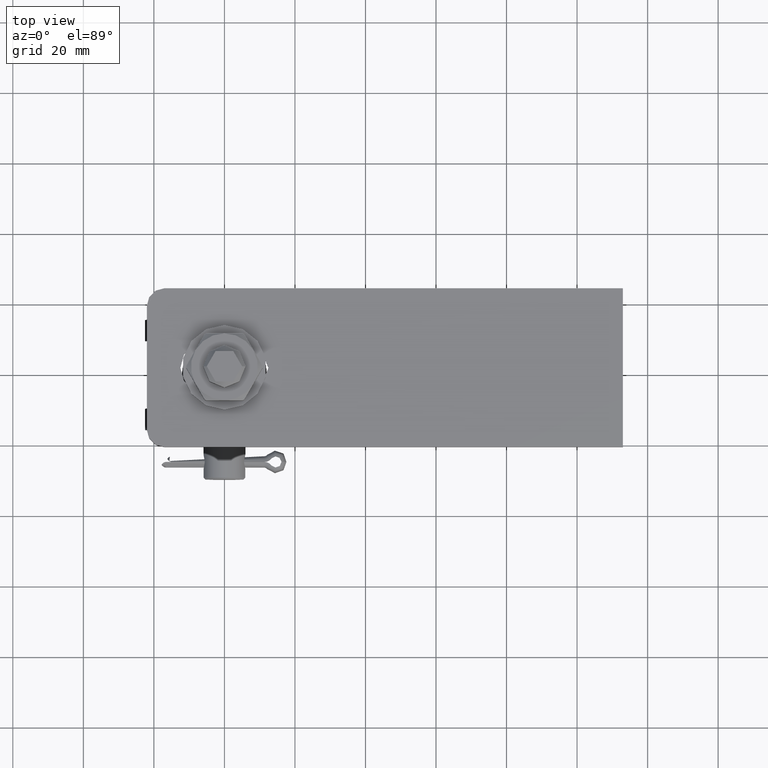
[diagram: clean part render]
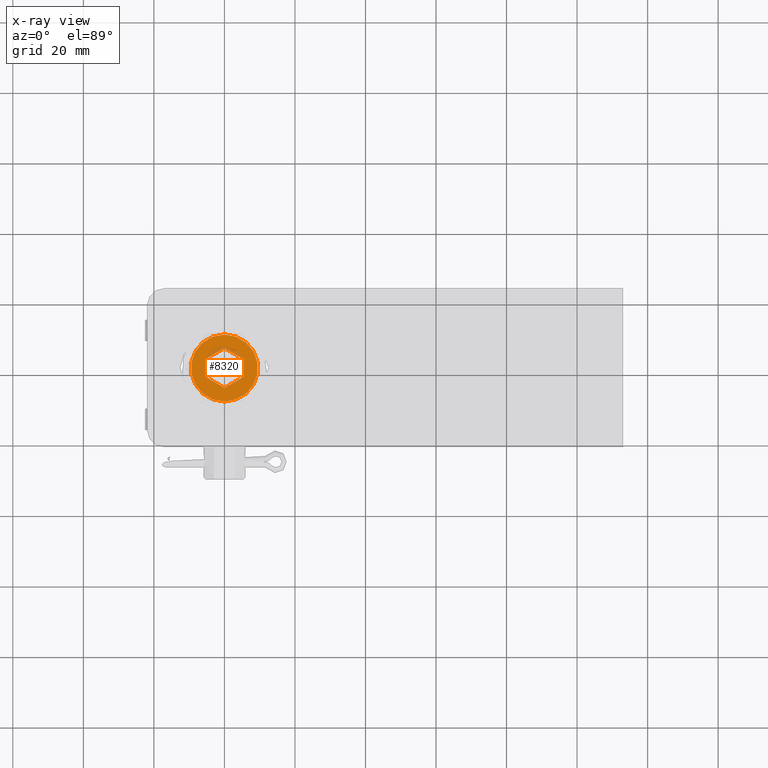
[diagram: x-ray — body ghosted, one internal face saturated and labeled with its STEP entity id]
A machine part, top view, then the same camera in x-ray: the body is ghosted and one INTERNAL B-rep face — a face not visible from any outside direction — is saturated and labeled: STEP entity #8320.
In plain terms, the highlighted planar face has unit normal (-0, 0, -1).
Its self-contained STEP definition (entity closure, byte-faithful):
#100 = CARTESIAN_POINT ( 'NONE',  ( -8.227241335952166779, -5.000000000000004441, 4.750000000000000000 ) ) ;
#216 = DIRECTION ( 'NONE',  ( -5.332501632730976308E-58, 0.000000000000000000, 1.000000000000000000 ) ) ;
#279 = CARTESIAN_POINT ( 'NONE',  ( 0.000000000000000000, -5.000000000000004441, 0.000000000000000000 ) ) ;
#420 = CARTESIAN_POINT ( 'NONE',  ( 0.000000000000000000, -5.000000000000004441, 0.000000000000000000 ) ) ;
#661 = DIRECTION ( 'NONE',  ( 8.881784197001252323E-16, 0.000000000000000000, 1.000000000000000000 ) ) ;
#663 = EDGE_CURVE ( 'NONE', #11355, #12921, #3059, .T. ) ;
#765 = VERTEX_POINT ( 'NONE', #14990 ) ;
#793 = EDGE_CURVE ( 'NONE', #765, #16151, #13659, .T. ) ;
#934 = DIRECTION ( 'NONE',  ( -5.332501632730977015E-58, 0.000000000000000000, 1.000000000000000000 ) ) ;
#1010 = DIRECTION ( 'NONE',  ( -5.332501632730976308E-58, 0.000000000000000000, 1.000000000000000000 ) ) ;
#1414 = AXIS2_PLACEMENT_3D ( 'NONE', #9648, #2019, #661 ) ;
#1593 = DIRECTION ( 'NONE',  ( -0.000000000000000000, -1.000000000000000000, -0.000000000000000000 ) ) ;
#1826 = ORIENTED_EDGE ( 'NONE', *, *, #12090, .T. ) ;
#2019 = DIRECTION ( 'NONE',  ( -0.000000000000000000, -1.000000000000000000, -0.000000000000000000 ) ) ;
#2489 = CARTESIAN_POINT ( 'NONE',  ( 0.000000000000000000, -5.000000000000004441, 0.000000000000000000 ) ) ;
#2492 = ORIENTED_EDGE ( 'NONE', *, *, #7893, .T. ) ;
#2567 = AXIS2_PLACEMENT_3D ( 'NONE', #4148, #5487, #216 ) ;
#2681 = DIRECTION ( 'NONE',  ( -8.881784197001252323E-16, 0.000000000000000000, 1.000000000000000000 ) ) ;
#2754 = PLANE ( 'NONE',  #2567 ) ;
#3052 = CARTESIAN_POINT ( 'NONE',  ( 0.000000000000000000, -5.000000000000004441, 0.000000000000000000 ) ) ;
#3059 = CIRCLE ( 'NONE', #7001, 9.499999999999998224 ) ;
#3911 = CIRCLE ( 'NONE', #12816, 9.499999999999998224 ) ;
#4148 = CARTESIAN_POINT ( 'NONE',  ( 0.000000000000000000, -5.000000000000004441, 0.000000000000000000 ) ) ;
#4269 = EDGE_CURVE ( 'NONE', #15916, #17182, #15122, .T. ) ;
#4470 = ORIENTED_EDGE ( 'NONE', *, *, #6750, .T. ) ;
#4530 = AXIS2_PLACEMENT_3D ( 'NONE', #279, #1593, #2681 ) ;
#4988 = DIRECTION ( 'NONE',  ( -5.332501632730977015E-58, 0.000000000000000000, 1.000000000000000000 ) ) ;
#5111 = FACE_BOUND ( 'NONE', #12027, .T. ) ;
#5123 = VERTEX_POINT ( 'NONE', #9698 ) ;
#5487 = DIRECTION ( 'NONE',  ( 0.000000000000000000, 1.000000000000000000, 0.000000000000000000 ) ) ;
#5516 = FACE_OUTER_BOUND ( 'NONE', #11053, .T. ) ;
#5571 = DIRECTION ( 'NONE',  ( -5.332501632730976308E-58, 0.000000000000000000, 1.000000000000000000 ) ) ;
#5579 = ORIENTED_EDGE ( 'NONE', *, *, #9353, .T. ) ;
#6349 = CARTESIAN_POINT ( 'NONE',  ( 0.000000000000000000, -5.000000000000004441, 0.000000000000000000 ) ) ;
#6732 = CIRCLE ( 'NONE', #15186, 5.600000000000000533 ) ;
#6750 = EDGE_CURVE ( 'NONE', #10880, #11355, #3911, .T. ) ;
#7001 = AXIS2_PLACEMENT_3D ( 'NONE', #420, #15048, #5571 ) ;
#7893 = EDGE_CURVE ( 'NONE', #12921, #5123, #11391, .T. ) ;
#8320 = ADVANCED_FACE ( 'NONE', ( #5111, #5516 ), #2754, .F. ) ;
#8552 = CIRCLE ( 'NONE', #11478, 9.499999999999998224 ) ;
#8855 = ORIENTED_EDGE ( 'NONE', *, *, #12431, .T. ) ;
#8886 = CARTESIAN_POINT ( 'NONE',  ( 0.000000000000000000, -5.000000000000004441, 0.000000000000000000 ) ) ;
#9068 = DIRECTION ( 'NONE',  ( 1.776356839400250465E-15, 0.000000000000000000, 1.000000000000000000 ) ) ;
#9353 = EDGE_CURVE ( 'NONE', #17182, #15916, #6732, .T. ) ;
#9362 = CIRCLE ( 'NONE', #4530, 9.499999999999998224 ) ;
#9373 = AXIS2_PLACEMENT_3D ( 'NONE', #2489, #17042, #9068 ) ;
#9648 = CARTESIAN_POINT ( 'NONE',  ( 0.000000000000000000, -5.000000000000004441, 0.000000000000000000 ) ) ;
#9698 = CARTESIAN_POINT ( 'NONE',  ( -1.502314598737151143E-15, -5.000000000000004441, -9.499999999999998224 ) ) ;
#10211 = CARTESIAN_POINT ( 'NONE',  ( -8.227241335952166779, -5.000000000000004441, -4.749999999999999112 ) ) ;
#10393 = DIRECTION ( 'NONE',  ( 0.000000000000000000, 1.000000000000000000, 0.000000000000000000 ) ) ;
#10688 = CARTESIAN_POINT ( 'NONE',  ( 2.986200914329347412E-57, -5.000000000000004441, -5.600000000000000533 ) ) ;
#10755 = ORIENTED_EDGE ( 'NONE', *, *, #663, .T. ) ;
#10880 = VERTEX_POINT ( 'NONE', #13819 ) ;
#11052 = CARTESIAN_POINT ( 'NONE',  ( 6.858022075225178552E-16, -5.000000000000004441, 5.600000000000000533 ) ) ;
#11053 = EDGE_LOOP ( 'NONE', ( #8855, #4470, #10755, #2492, #1826, #17173 ) ) ;
#11355 = VERTEX_POINT ( 'NONE', #100 ) ;
#11391 = CIRCLE ( 'NONE', #9373, 9.499999999999998224 ) ;
#11392 = DIRECTION ( 'NONE',  ( 0.000000000000000000, 1.000000000000000000, 0.000000000000000000 ) ) ;
#11478 = AXIS2_PLACEMENT_3D ( 'NONE', #3052, #15016, #13753 ) ;
#12027 = EDGE_LOOP ( 'NONE', ( #15602, #5579 ) ) ;
#12090 = EDGE_CURVE ( 'NONE', #5123, #765, #8552, .T. ) ;
#12431 = EDGE_CURVE ( 'NONE', #16151, #10880, #9362, .T. ) ;
#12745 = CARTESIAN_POINT ( 'NONE',  ( 0.000000000000000000, -5.000000000000004441, 0.000000000000000000 ) ) ;
#12816 = AXIS2_PLACEMENT_3D ( 'NONE', #8886, #14291, #1010 ) ;
#12921 = VERTEX_POINT ( 'NONE', #10211 ) ;
#13659 = CIRCLE ( 'NONE', #1414, 9.499999999999998224 ) ;
#13753 = DIRECTION ( 'NONE',  ( 5.332501632730976308E-58, 0.000000000000000000, -1.000000000000000000 ) ) ;
#13819 = CARTESIAN_POINT ( 'NONE',  ( 0.000000000000000000, -5.000000000000004441, 9.499999999999998224 ) ) ;
#14291 = DIRECTION ( 'NONE',  ( -0.000000000000000000, -1.000000000000000000, -0.000000000000000000 ) ) ;
#14338 = CARTESIAN_POINT ( 'NONE',  ( 8.227241335952165002, -5.000000000000004441, 4.749999999999996447 ) ) ;
#14477 = AXIS2_PLACEMENT_3D ( 'NONE', #12745, #11392, #934 ) ;
#14990 = CARTESIAN_POINT ( 'NONE',  ( 8.227241335952163226, -5.000000000000004441, -4.750000000000001776 ) ) ;
#15016 = DIRECTION ( 'NONE',  ( 0.000000000000000000, -1.000000000000000000, 0.000000000000000000 ) ) ;
#15048 = DIRECTION ( 'NONE',  ( -0.000000000000000000, -1.000000000000000000, -0.000000000000000000 ) ) ;
#15122 = CIRCLE ( 'NONE', #14477, 5.600000000000000533 ) ;
#15186 = AXIS2_PLACEMENT_3D ( 'NONE', #6349, #10393, #4988 ) ;
#15602 = ORIENTED_EDGE ( 'NONE', *, *, #4269, .T. ) ;
#15916 = VERTEX_POINT ( 'NONE', #10688 ) ;
#16151 = VERTEX_POINT ( 'NONE', #14338 ) ;
#17042 = DIRECTION ( 'NONE',  ( -0.000000000000000000, -1.000000000000000000, -0.000000000000000000 ) ) ;
#17173 = ORIENTED_EDGE ( 'NONE', *, *, #793, .T. ) ;
#17182 = VERTEX_POINT ( 'NONE', #11052 ) ;